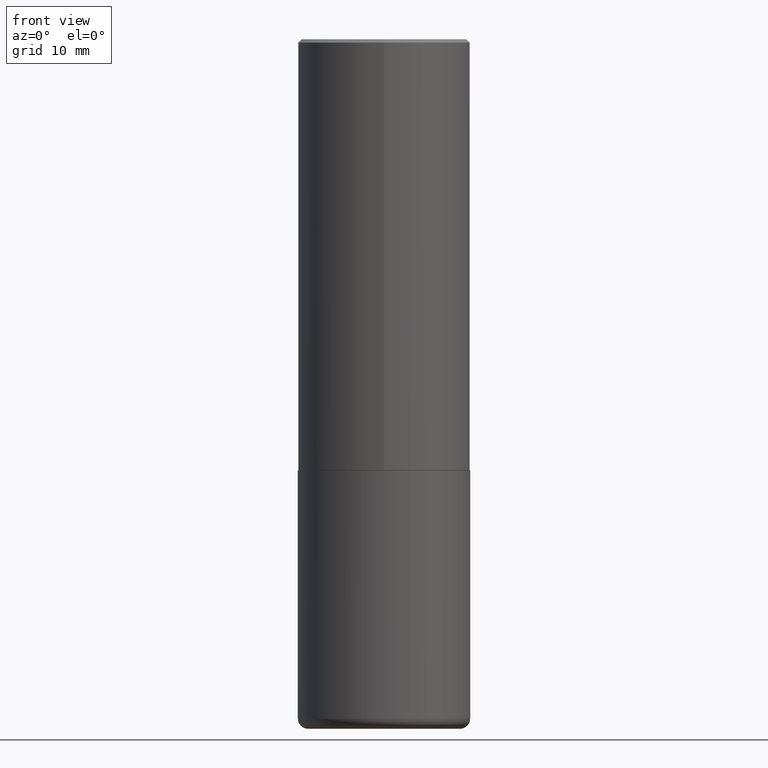
[diagram: clean part render]
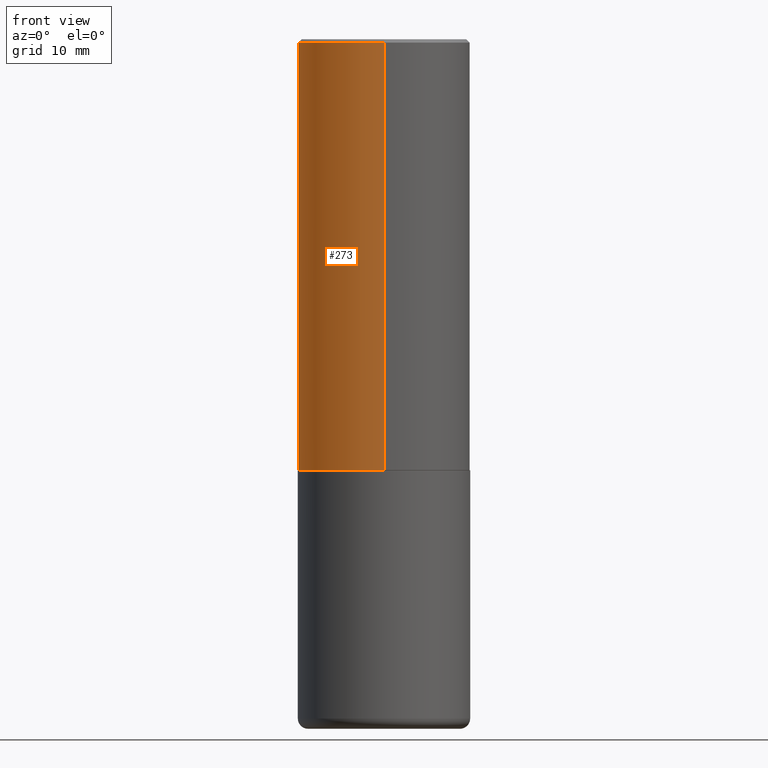
[diagram: same view with one face highlighted and labeled with its STEP entity id]
A machine part, front view. The second image highlights one B-rep face of the part: STEP entity #273.
In plain terms, the highlighted cylindrical surface (partial cylindrical patch) has radius 12.7 mm, axis along (-0, 0, 1).
Its self-contained STEP definition (entity closure, byte-faithful):
#13 = CIRCLE ( 'NONE', #357, 0.5000000000000002220 ) ;
#14 = DIRECTION ( 'NONE',  ( -6.982962677686265922E-15, -1.000000000000000000, 3.492229786509738161E-15 ) ) ;
#43 = VECTOR ( 'NONE', #143, 39.37007874015748143 ) ;
#55 = CARTESIAN_POINT ( 'NONE',  ( 3.491481338843133355E-15, 0.4999999999999999445, -0.02000000000000185310 ) ) ;
#64 = VERTEX_POINT ( 'NONE', #268 ) ;
#74 = CARTESIAN_POINT ( 'NONE',  ( 3.552713678800533273E-15, 0.4999999999999916178, -2.499000000000001886 ) ) ;
#80 = EDGE_CURVE ( 'NONE', #228, #64, #347, .T. ) ;
#83 = FACE_OUTER_BOUND ( 'NONE', #123, .T. ) ;
#105 = CARTESIAN_POINT ( 'NONE',  ( 6.109920473764365540E-29, -8.727082236487837614E-15, -2.499000000000000110 ) ) ;
#123 = EDGE_LOOP ( 'NONE', ( #194, #364, #255, #394 ) ) ;
#143 = DIRECTION ( 'NONE',  ( -2.444946167972934928E-29, 3.492229786509738161E-15, 1.000000000000000000 ) ) ;
#163 = EDGE_CURVE ( 'NONE', #166, #231, #13, .T. ) ;
#166 = VERTEX_POINT ( 'NONE', #74 ) ;
#174 = CARTESIAN_POINT ( 'NONE',  ( 4.889892335945895815E-31, -6.984459573019513448E-17, -0.02000000000000010797 ) ) ;
#180 = AXIS2_PLACEMENT_3D ( 'NONE', #302, #346, #14 ) ;
#187 = LINE ( 'NONE', #381, #226 ) ;
#194 = ORIENTED_EDGE ( 'NONE', *, *, #280, .F. ) ;
#210 = DIRECTION ( 'NONE',  ( -2.444946167972934928E-29, 3.492229786509738161E-15, 1.000000000000000000 ) ) ;
#226 = VECTOR ( 'NONE', #308, 39.37007874015748143 ) ;
#228 = VERTEX_POINT ( 'NONE', #55 ) ;
#231 = VERTEX_POINT ( 'NONE', #412 ) ;
#232 = EDGE_CURVE ( 'NONE', #231, #64, #187, .T. ) ;
#236 = DIRECTION ( 'NONE',  ( -2.444946167972934928E-29, 3.492229786509738161E-15, 1.000000000000000000 ) ) ;
#243 = CYLINDRICAL_SURFACE ( 'NONE', #180, 0.5000000000000001110 ) ;
#255 = ORIENTED_EDGE ( 'NONE', *, *, #232, .T. ) ;
#256 = AXIS2_PLACEMENT_3D ( 'NONE', #174, #210, #342 ) ;
#267 = CARTESIAN_POINT ( 'NONE',  ( 3.552713678800501718E-15, 0.5000000000000001110, -1.746114893254869475E-15 ) ) ;
#268 = CARTESIAN_POINT ( 'NONE',  ( -3.430248998885764992E-15, -0.5000000000000001110, -0.01999999999999835937 ) ) ;
#273 = ADVANCED_FACE ( 'NONE', ( #83 ), #243, .T. ) ;
#280 = EDGE_CURVE ( 'NONE', #166, #228, #377, .T. ) ;
#302 = CARTESIAN_POINT ( 'NONE',  ( 0.000000000000000000, 0.000000000000000000, 0.000000000000000000 ) ) ;
#308 = DIRECTION ( 'NONE',  ( -2.444946167972934928E-29, 3.492229786509738161E-15, 1.000000000000000000 ) ) ;
#342 = DIRECTION ( 'NONE',  ( -6.982962677686265922E-15, -1.000000000000000000, 3.491643216902136408E-15 ) ) ;
#346 = DIRECTION ( 'NONE',  ( -2.444946167972934928E-29, 3.492229786509738161E-15, 1.000000000000000000 ) ) ;
#347 = CIRCLE ( 'NONE', #256, 0.5000000000000000000 ) ;
#357 = AXIS2_PLACEMENT_3D ( 'NONE', #105, #236, #369 ) ;
#364 = ORIENTED_EDGE ( 'NONE', *, *, #163, .T. ) ;
#369 = DIRECTION ( 'NONE',  ( -6.982962677686266711E-15, -1.000000000000000000, 3.278217592397114284E-15 ) ) ;
#377 = LINE ( 'NONE', #267, #43 ) ;
#381 = CARTESIAN_POINT ( 'NONE',  ( -3.491481338843133750E-15, -0.5000000000000001110, 1.746114893254869475E-15 ) ) ;
#394 = ORIENTED_EDGE ( 'NONE', *, *, #80, .F. ) ;
#412 = CARTESIAN_POINT ( 'NONE',  ( -3.491481338843073796E-15, -0.5000000000000089928, -2.498999999999998778 ) ) ;